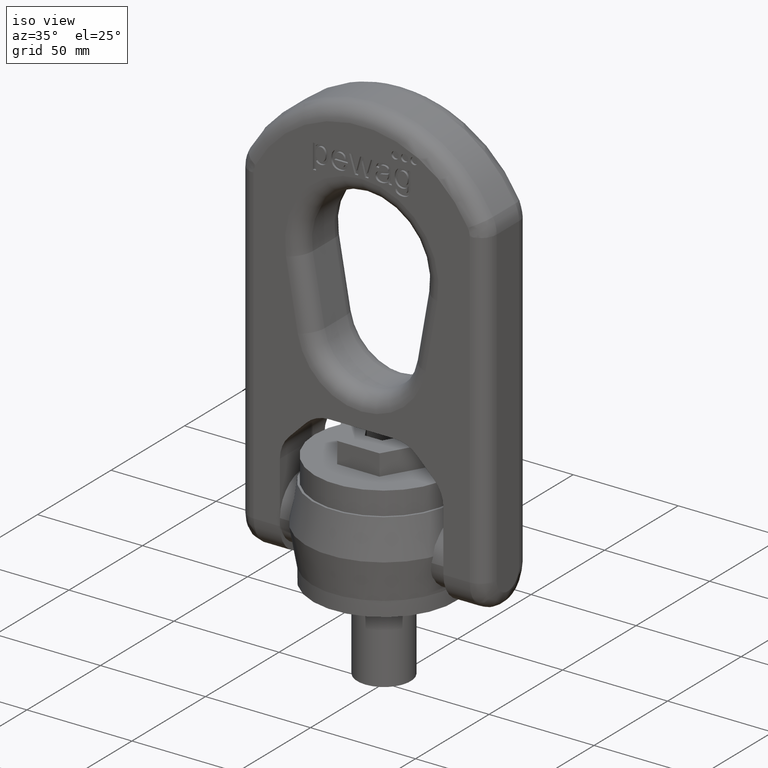
[diagram: clean part render]
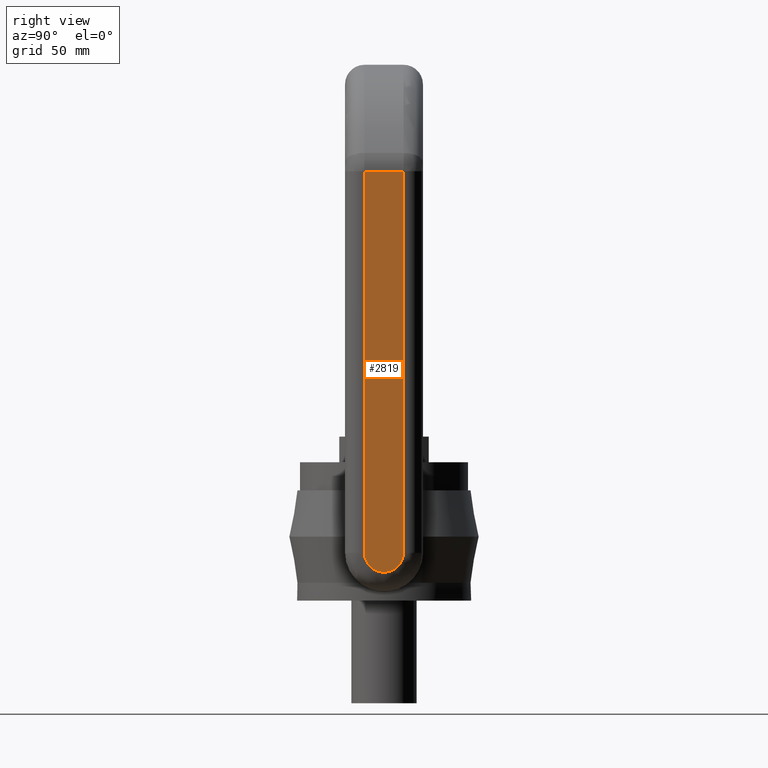
[diagram: tour spotlight — one face highlighted and labeled with its STEP entity id]
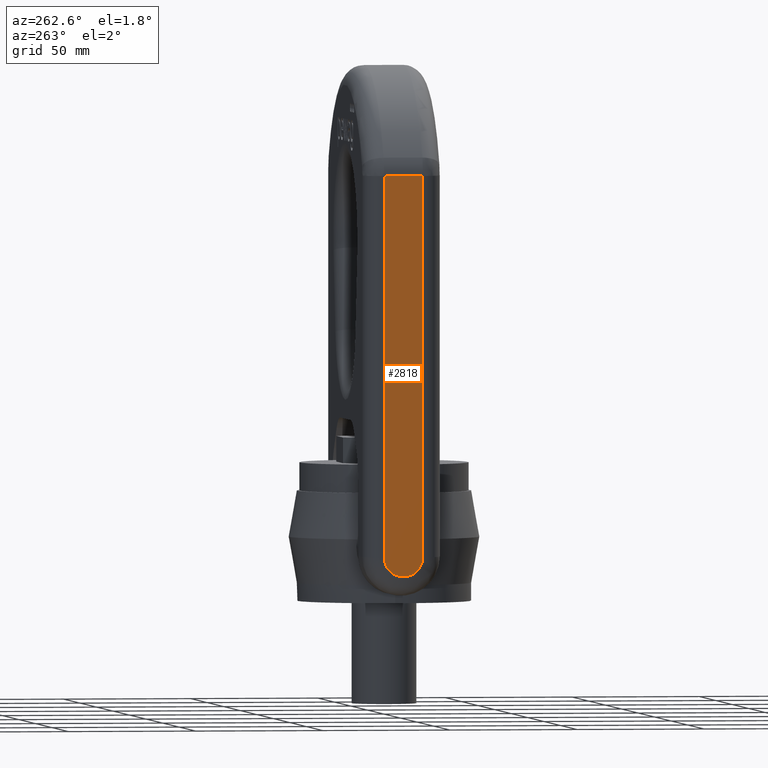
[diagram: tour spotlight — one face highlighted and labeled with its STEP entity id]
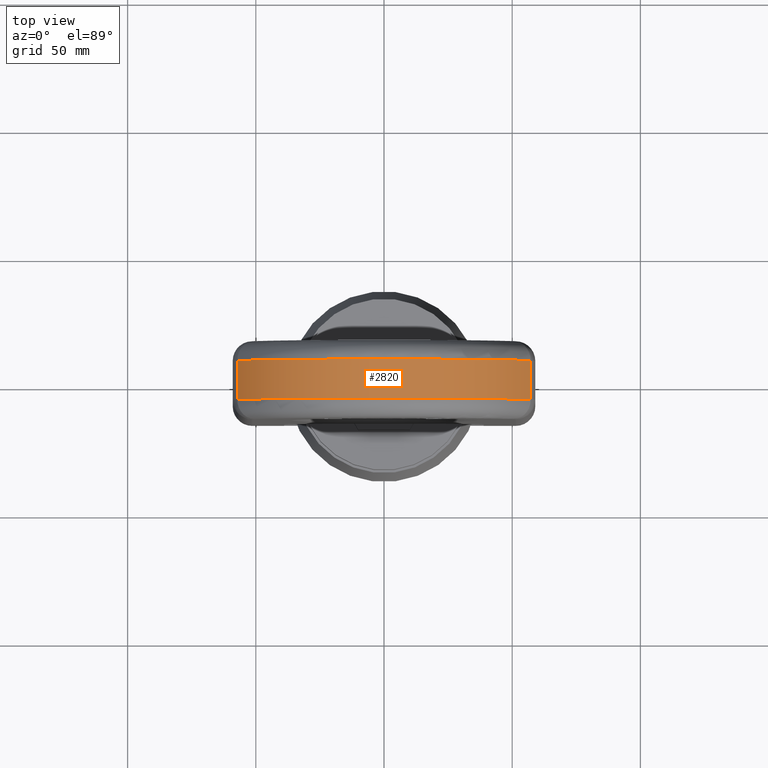
[diagram: tour spotlight — one face highlighted and labeled with its STEP entity id]
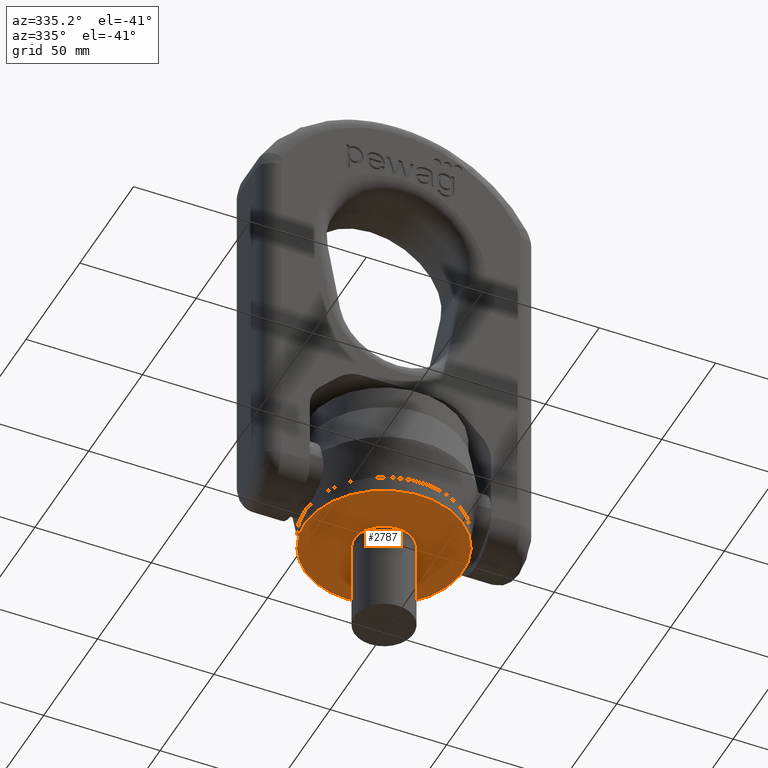
[diagram: tour spotlight — one face highlighted and labeled with its STEP entity id]
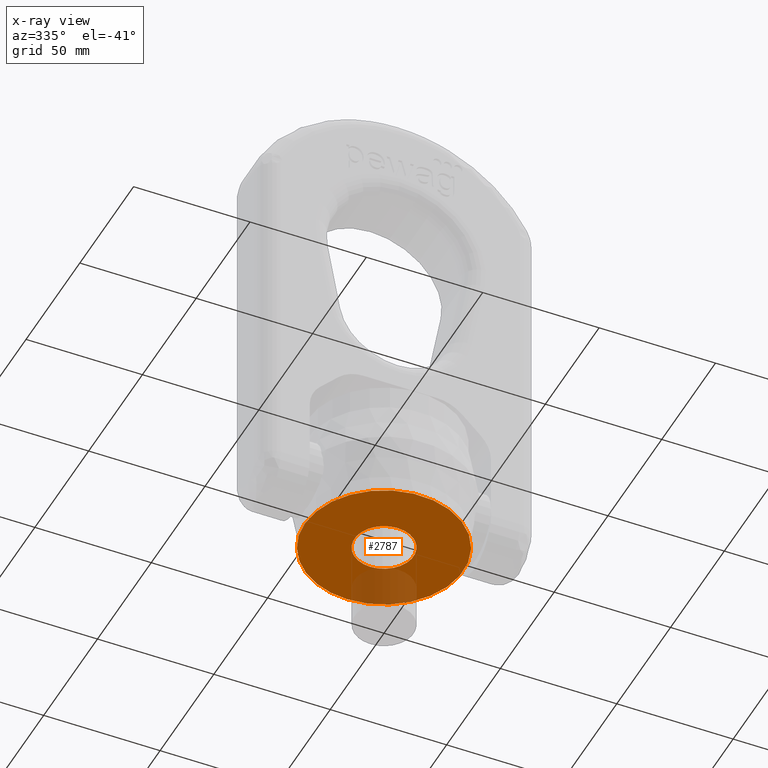
[diagram: x-ray of the same camera — body ghosted, this tour face saturated]
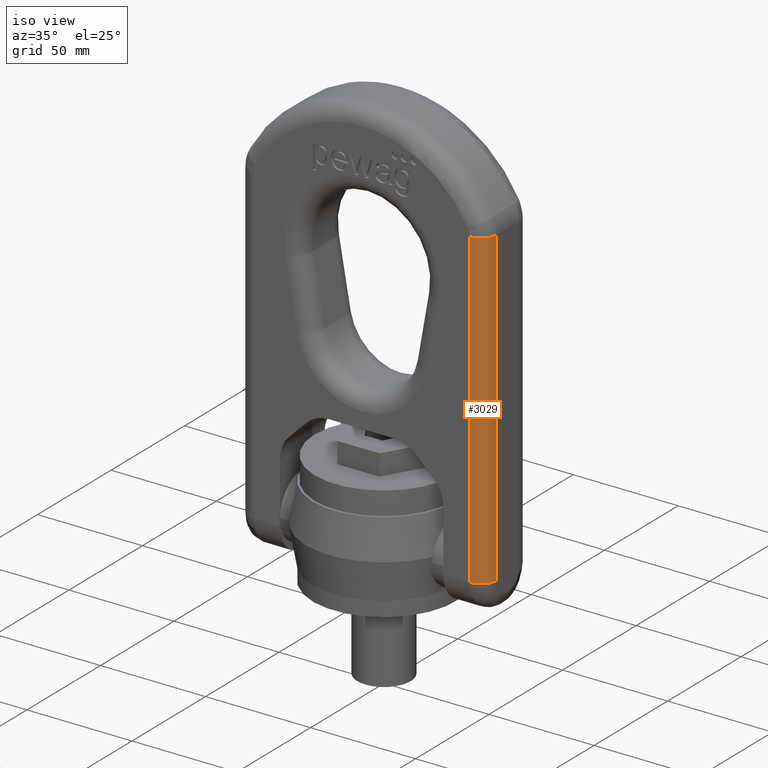
[diagram: tour spotlight — one face highlighted and labeled with its STEP entity id]
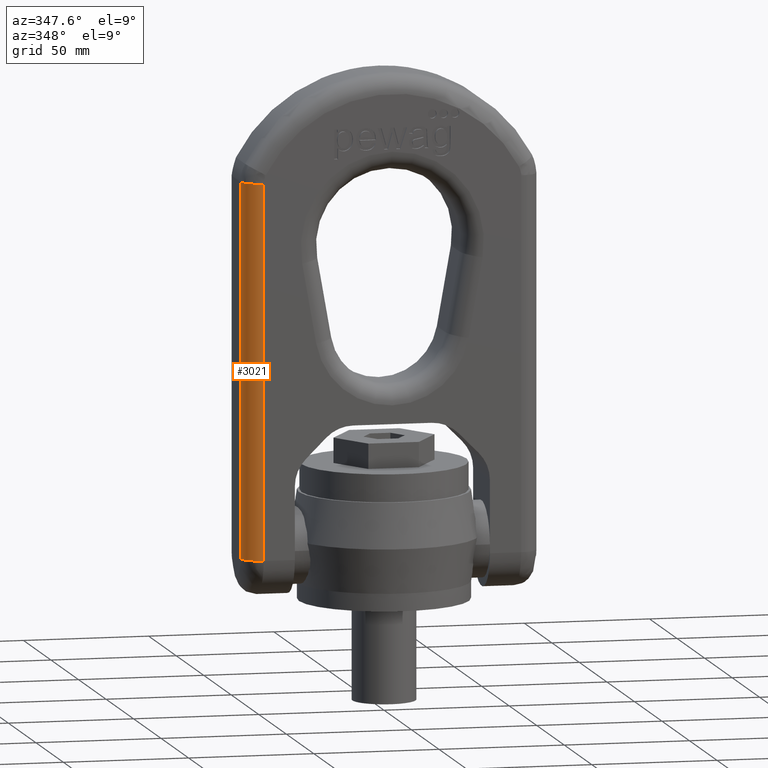
[diagram: tour spotlight — one face highlighted and labeled with its STEP entity id]
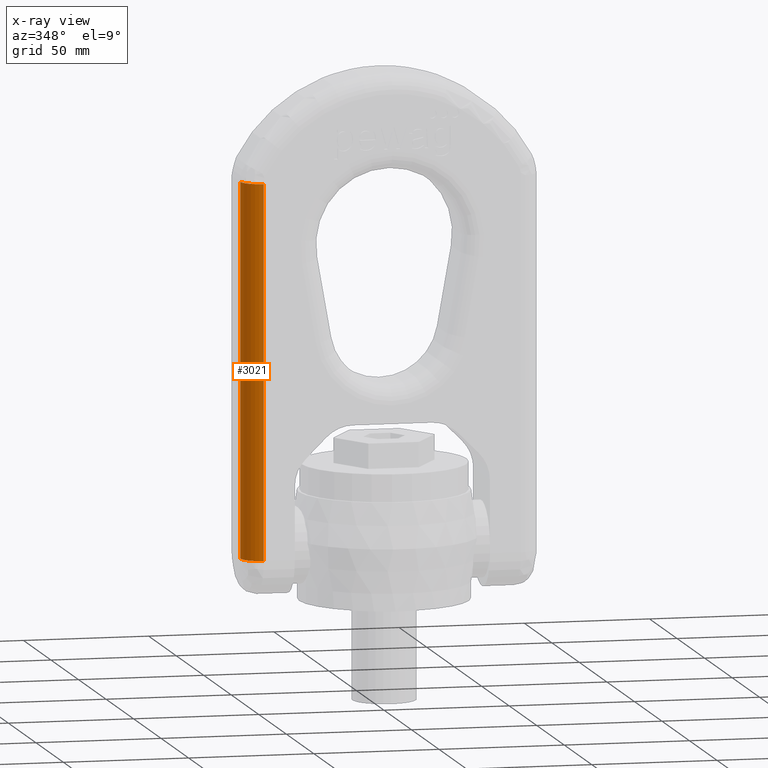
[diagram: x-ray of the same camera — body ghosted, this tour face saturated]
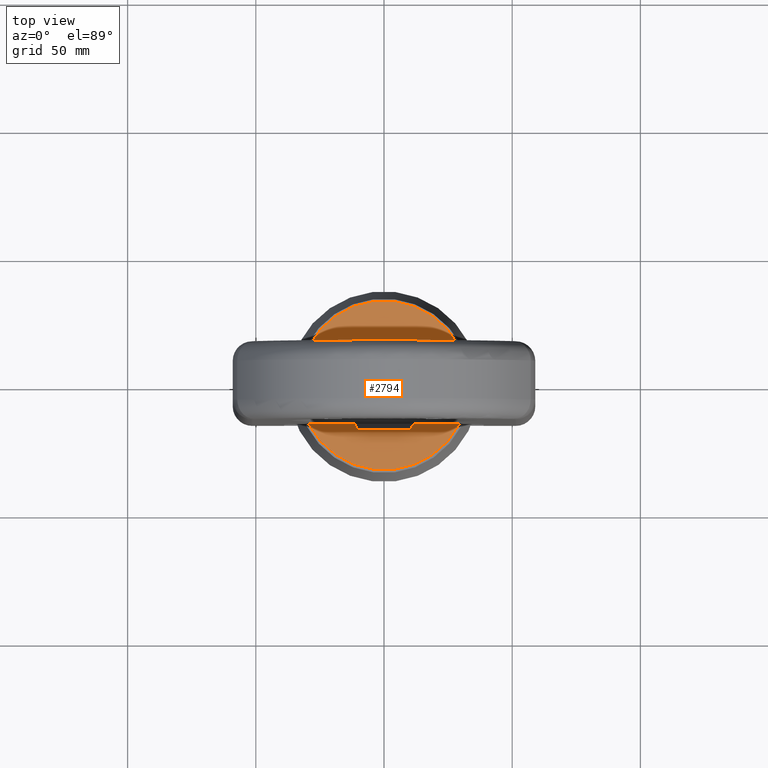
[diagram: tour spotlight — one face highlighted and labeled with its STEP entity id]
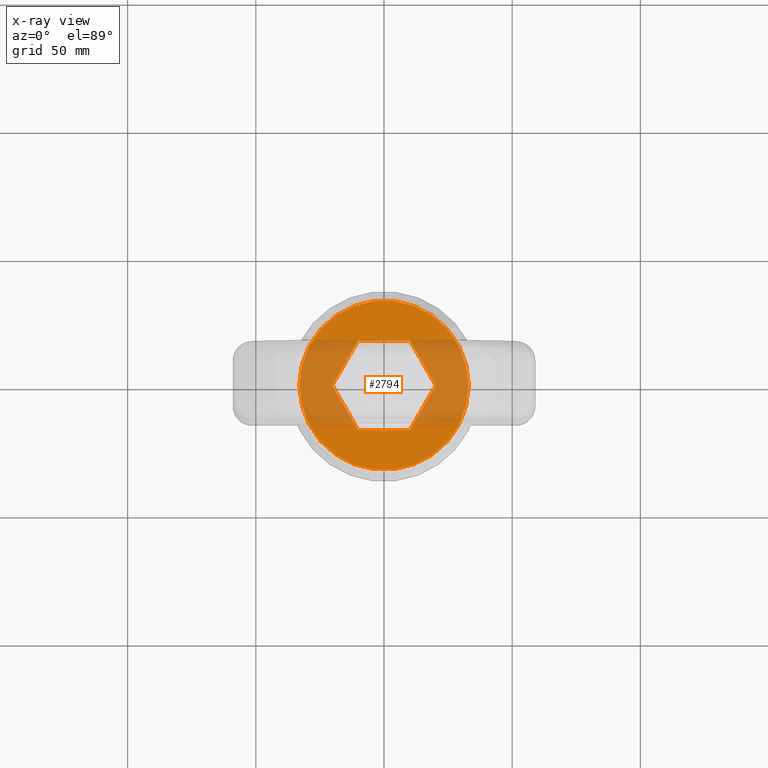
[diagram: x-ray of the same camera — body ghosted, this tour face saturated]
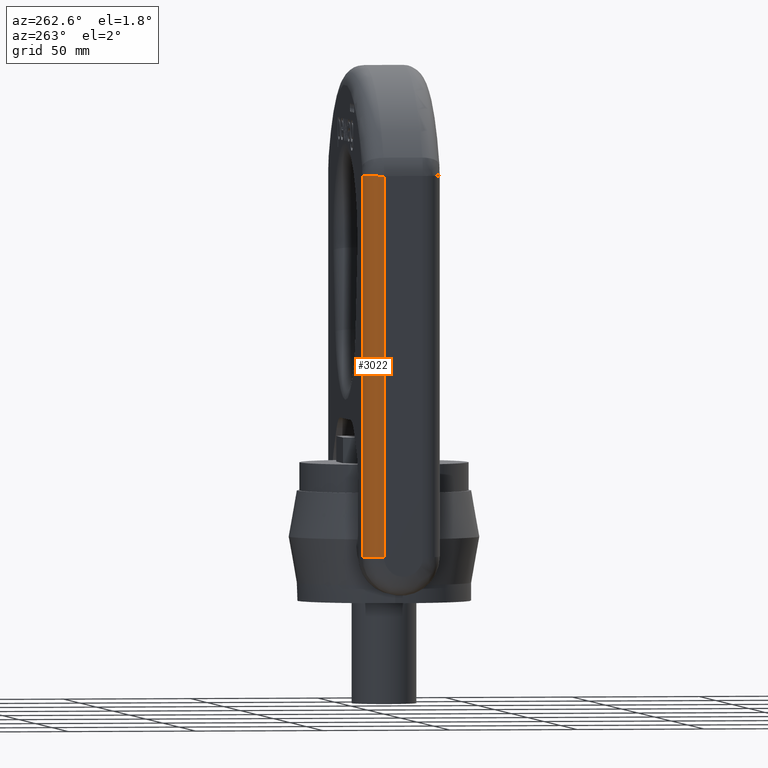
[diagram: tour spotlight — one face highlighted and labeled with its STEP entity id]
A machine part: a face-by-face anatomy tour. The part has 254 B-rep faces; the first image is the clean iso view, then the 8 largest visible faces are spotlighted one at a time (largest first), each with its STEP entity span.

Face 1 — right view, entity #2819. In plain terms, the highlighted planar face has unit normal (-1, 0, -0).
Definition (entity closure, byte-faithful):
#1867=LINE('',#7754,#2175);
#1868=LINE('',#7756,#2176);
#1869=LINE('',#7758,#2177);
#2175=VECTOR('',#6354,1.);
#2176=VECTOR('',#6355,1.);
#2177=VECTOR('',#6356,1.);
#2459=FACE_OUTER_BOUND('',#3197,.T.);
#2690=PLANE('',#5903);
#2819=ADVANCED_FACE('',(#2459),#2690,.F.);
#3197=EDGE_LOOP('',(#3735,#3736,#3737,#3738));
#3735=ORIENTED_EDGE('',*,*,#5364,.T.);
#3736=ORIENTED_EDGE('',*,*,#5365,.T.);
#3737=ORIENTED_EDGE('',*,*,#5366,.T.);
#3738=ORIENTED_EDGE('',*,*,#5367,.T.);
#4923=VERTEX_POINT('',#7752);
#4924=VERTEX_POINT('',#7753);
#4925=VERTEX_POINT('',#7755);
#4926=VERTEX_POINT('',#7757);
#5364=EDGE_CURVE('',#4923,#4924,#5790,.T.);
#5365=EDGE_CURVE('',#4924,#4925,#1867,.T.);
#5366=EDGE_CURVE('',#4925,#4926,#1868,.T.);
#5367=EDGE_CURVE('',#4926,#4923,#1869,.T.);
#5790=CIRCLE('',#5902,7.59999999999993);
#5902=AXIS2_PLACEMENT_3D('',#7751,#6352,#6353);
#5903=AXIS2_PLACEMENT_3D('',#7759,#6357,#6358);
#6352=DIRECTION('',(1.,0.,8.28524645242654E-17));
#6353=DIRECTION('',(0.,0.,1.));
#6354=DIRECTION('',(-8.28524645242654E-17,1.94115928071668E-31,1.));
#6355=DIRECTION('',(0.,-1.,0.));
#6356=DIRECTION('',(8.28524645242654E-17,0.,-1.));
#6357=DIRECTION('',(-1.,0.,-8.28524645242654E-17));
#6358=DIRECTION('',(-8.32667268468867E-17,0.,1.));
#7751=CARTESIAN_POINT('',(59.,-6.04507028238697E-14,18.6999999999999));
#7752=CARTESIAN_POINT('',(59.,-7.6,18.6999999999999));
#7753=CARTESIAN_POINT('',(59.,7.59999999999987,18.6999999999999));
#7754=CARTESIAN_POINT('',(59.,7.59999999999988,167.477855090295));
#7755=CARTESIAN_POINT('',(59.,7.59999999999987,167.477855090295));
#7756=CARTESIAN_POINT('',(59.,-15.2,167.477855090295));
#7757=CARTESIAN_POINT('',(59.,-7.6,167.477855090295));
#7758=CARTESIAN_POINT('',(59.,-7.6,18.6999999999999));
#7759=CARTESIAN_POINT('',(59.,-15.2,3.5));

Face 2 — auxiliary view, entity #2818. In plain terms, the highlighted planar face has unit normal (1, 0, -0).
Definition (entity closure, byte-faithful):
#1864=LINE('',#7742,#2172);
#1865=LINE('',#7745,#2173);
#1866=LINE('',#7749,#2174);
#2172=VECTOR('',#6345,1.);
#2173=VECTOR('',#6346,1.);
#2174=VECTOR('',#6349,1.);
#2458=FACE_OUTER_BOUND('',#3196,.T.);
#2689=PLANE('',#5901);
#2818=ADVANCED_FACE('',(#2458),#2689,.F.);
#3196=EDGE_LOOP('',(#3731,#3732,#3733,#3734));
#3731=ORIENTED_EDGE('',*,*,#5360,.T.);
#3732=ORIENTED_EDGE('',*,*,#5361,.T.);
#3733=ORIENTED_EDGE('',*,*,#5362,.T.);
#3734=ORIENTED_EDGE('',*,*,#5363,.T.);
#4919=VERTEX_POINT('',#7743);
#4920=VERTEX_POINT('',#7744);
#4921=VERTEX_POINT('',#7746);
#4922=VERTEX_POINT('',#7748);
#5360=EDGE_CURVE('',#4919,#4920,#1864,.T.);
#5361=EDGE_CURVE('',#4920,#4921,#1865,.T.);
#5362=EDGE_CURVE('',#4921,#4922,#5789,.T.);
#5363=EDGE_CURVE('',#4922,#4919,#1866,.T.);
#5789=CIRCLE('',#5900,7.59999999999993);
#5900=AXIS2_PLACEMENT_3D('',#7747,#6347,#6348);
#5901=AXIS2_PLACEMENT_3D('',#7750,#6350,#6351);
#6345=DIRECTION('',(0.,1.,0.));
#6346=DIRECTION('',(-8.28524645242654E-17,1.94115928071668E-31,-1.));
#6347=DIRECTION('',(-1.,0.,8.28524645242654E-17));
#6348=DIRECTION('',(0.,0.,-1.));
#6349=DIRECTION('',(8.28524645242654E-17,0.,1.));
#6350=DIRECTION('',(1.,0.,-8.28524645242654E-17));
#6351=DIRECTION('',(-8.32667268468867E-17,0.,-1.));
#7742=CARTESIAN_POINT('',(-59.,-15.2,167.477855090295));
#7743=CARTESIAN_POINT('',(-59.,-7.6,167.477855090295));
#7744=CARTESIAN_POINT('',(-59.,7.60000000000012,167.477855090295));
#7745=CARTESIAN_POINT('',(-59.,7.60000000000012,18.7000000000001));
#7746=CARTESIAN_POINT('',(-59.,7.59999999999999,18.7000000000001));
#7747=CARTESIAN_POINT('',(-59.,6.04507028238698E-14,18.7000000000001));
#7748=CARTESIAN_POINT('',(-59.,-7.6,18.7000000000001));
#7749=CARTESIAN_POINT('',(-59.,-7.6,167.477855090295));
#7750=CARTESIAN_POINT('',(-59.,-15.2,171.));

Face 3 — top view, entity #2820. In plain terms, the highlighted cylindrical surface (partial cylindrical patch) has radius 64.8026 mm, axis along (0, 1, 0).
Definition (entity closure, byte-faithful):
#1870=LINE('',#7760,#2178);
#1871=LINE('',#7765,#2179);
#2178=VECTOR('',#6359,1.);
#2179=VECTOR('',#6362,1.);
#2460=FACE_OUTER_BOUND('',#3198,.T.);
#2820=ADVANCED_FACE('',(#2460),#3046,.T.);
#3046=CYLINDRICAL_SURFACE('',#5906,64.8026315789474);
#3198=EDGE_LOOP('',(#3739,#3740,#3741,#3742));
#3739=ORIENTED_EDGE('',*,*,#5368,.T.);
#3740=ORIENTED_EDGE('',*,*,#5369,.T.);
#3741=ORIENTED_EDGE('',*,*,#5370,.T.);
#3742=ORIENTED_EDGE('',*,*,#5371,.T.);
#4927=VERTEX_POINT('',#7761);
#4928=VERTEX_POINT('',#7762);
#4929=VERTEX_POINT('',#7764);
#4930=VERTEX_POINT('',#7766);
#5368=EDGE_CURVE('',#4927,#4928,#1870,.T.);
#5369=EDGE_CURVE('',#4928,#4929,#5791,.T.);
#5370=EDGE_CURVE('',#4929,#4930,#1871,.T.);
#5371=EDGE_CURVE('',#4930,#4927,#5792,.T.);
#5791=CIRCLE('',#5904,64.8026315789474);
#5792=CIRCLE('',#5905,64.8026315789474);
#5904=AXIS2_PLACEMENT_3D('',#7763,#6360,#6361);
#5905=AXIS2_PLACEMENT_3D('',#7767,#6363,#6364);
#5906=AXIS2_PLACEMENT_3D('',#7768,#6365,#6366);
#6359=DIRECTION('',(0.,1.,0.));
#6360=DIRECTION('',(-2.34291072916505E-15,-1.,0.));
#6361=DIRECTION('',(-1.,2.34231697771488E-15,0.));
#6362=DIRECTION('',(0.,-1.,0.));
#6363=DIRECTION('',(0.,1.,0.));
#6364=DIRECTION('',(0.,0.,-1.));
#6365=DIRECTION('',(0.,1.,0.));
#6366=DIRECTION('',(0.,0.,1.));
#7760=CARTESIAN_POINT('',(57.2218685341398,-15.2,174.611819279459));
#7761=CARTESIAN_POINT('',(57.2218685341398,-7.6,174.611819279459));
#7762=CARTESIAN_POINT('',(57.2218685341398,7.59999999999985,174.611819279459));
#7763=CARTESIAN_POINT('',(0.,7.59999999999998,144.197368421053));
#7764=CARTESIAN_POINT('',(-57.2218685341398,7.60000000000012,174.611819279459));
#7765=CARTESIAN_POINT('',(-57.2218685341398,-15.2,174.611819279459));
#7766=CARTESIAN_POINT('',(-57.2218685341398,-7.6,174.611819279459));
#7767=CARTESIAN_POINT('',(0.,-7.6,144.197368421053));
#7768=CARTESIAN_POINT('',(0.,-15.2,144.197368421053));

Face 4 — auxiliary view, entity #2787. An x-ray twin of the same camera follows (body ghosted, this face saturated) — the face is partly hidden behind the body. In plain terms, the highlighted planar face has unit normal (0, 0, -1).
Definition (entity closure, byte-faithful):
#2665=PLANE('',#5832);
#2787=ADVANCED_FACE('',(#3071,#3072),#2665,.T.);
#3071=FACE_BOUND('',#3139,.T.);
#3072=FACE_BOUND('',#3140,.T.);
#3139=EDGE_LOOP('',(#3435));
#3140=EDGE_LOOP('',(#3436));
#3435=ORIENTED_EDGE('',*,*,#5119,.F.);
#3436=ORIENTED_EDGE('',*,*,#5118,.T.);
#4698=VERTEX_POINT('',#6940);
#4699=VERTEX_POINT('',#6943);
#5118=EDGE_CURVE('',#4698,#4698,#5750,.T.);
#5119=EDGE_CURVE('',#4699,#4699,#5751,.T.);
#5750=CIRCLE('',#5829,34.);
#5751=CIRCLE('',#5831,12.7);
#5829=AXIS2_PLACEMENT_3D('',#6939,#6068,#6069);
#5831=AXIS2_PLACEMENT_3D('',#6942,#6072,#6073);
#5832=AXIS2_PLACEMENT_3D('',#6944,#6074,#6075);
#6068=DIRECTION('',(0.,0.,-1.));
#6069=DIRECTION('',(-6.12323399573677E-17,1.,0.));
#6072=DIRECTION('',(0.,0.,-1.));
#6073=DIRECTION('',(-6.12323399573677E-17,1.,0.));
#6074=DIRECTION('',(0.,0.,-1.));
#6075=DIRECTION('',(-1.,0.,0.));
#6939=CARTESIAN_POINT('',(0.,0.,0.));
#6940=CARTESIAN_POINT('',(-2.0818995585505E-15,34.,0.));
#6942=CARTESIAN_POINT('',(0.,0.,0.));
#6943=CARTESIAN_POINT('',(-7.77650717458569E-16,12.7,0.));
#6944=CARTESIAN_POINT('',(0.,0.,0.));

Face 5 — iso view, entity #3029. In plain terms, the highlighted cylindrical surface (edge-blend (fillet) strip) has radius 7.6 mm, axis along (0, 0, -1).
Definition (entity closure, byte-faithful):
#1776=LINE('',#7077,#2084);
#1869=LINE('',#7758,#2177);
#2084=VECTOR('',#6199,1.);
#2177=VECTOR('',#6356,1.);
#2654=FACE_OUTER_BOUND('',#3422,.T.);
#3029=ADVANCED_FACE('',(#2654),#3063,.T.);
#3063=CYLINDRICAL_SURFACE('',#6045,7.6);
#3422=EDGE_LOOP('',(#4653,#4654,#4655,#4656));
#4653=ORIENTED_EDGE('',*,*,#5737,.F.);
#4654=ORIENTED_EDGE('',*,*,#5180,.F.);
#4655=ORIENTED_EDGE('',*,*,#5739,.F.);
#4656=ORIENTED_EDGE('',*,*,#5367,.F.);
#4742=VERTEX_POINT('',#7066);
#4747=VERTEX_POINT('',#7078);
#4923=VERTEX_POINT('',#7752);
#4926=VERTEX_POINT('',#7757);
#5180=EDGE_CURVE('',#4742,#4747,#1776,.T.);
#5367=EDGE_CURVE('',#4926,#4923,#1869,.T.);
#5737=EDGE_CURVE('',#4747,#4926,#5815,.T.);
#5739=EDGE_CURVE('',#4923,#4742,#5817,.T.);
#5815=CIRCLE('',#6042,7.6);
#5817=CIRCLE('',#6044,7.6);
#6042=AXIS2_PLACEMENT_3D('',#9775,#6892,#6893);
#6044=AXIS2_PLACEMENT_3D('',#9809,#6896,#6897);
#6045=AXIS2_PLACEMENT_3D('',#9810,#6898,#6899);
#6199=DIRECTION('',(-8.28524645242654E-17,0.,1.));
#6356=DIRECTION('',(8.28524645242654E-17,0.,-1.));
#6892=DIRECTION('',(0.,0.,1.));
#6893=DIRECTION('',(-1.,0.,0.));
#6896=DIRECTION('',(0.,0.,-1.));
#6897=DIRECTION('',(-1.,0.,0.));
#6898=DIRECTION('',(8.28524645242654E-17,0.,-1.));
#6899=DIRECTION('',(-1.,0.,0.));
#7066=CARTESIAN_POINT('',(51.4,-15.2,18.6999999999999));
#7077=CARTESIAN_POINT('',(51.4,-15.2,167.477855090295));
#7078=CARTESIAN_POINT('',(51.4,-15.2,167.477855090295));
#7752=CARTESIAN_POINT('',(59.,-7.6,18.6999999999999));
#7757=CARTESIAN_POINT('',(59.,-7.6,167.477855090295));
#7758=CARTESIAN_POINT('',(59.,-7.6,18.6999999999999));
#9775=CARTESIAN_POINT('',(51.4,-7.6,167.477855090295));
#9809=CARTESIAN_POINT('',(51.4,-7.6,18.6999999999999));
#9810=CARTESIAN_POINT('',(51.4,-7.6,144.197368421053));

Face 6 — auxiliary view, entity #3021. An x-ray twin of the same camera follows (body ghosted, this face saturated) — the face is partly hidden behind the body. In plain terms, the highlighted cylindrical surface (edge-blend (fillet) strip) has radius 7.6 mm, axis along (0, 0, 1).
Definition (entity closure, byte-faithful):
#1777=LINE('',#7085,#2085);
#1866=LINE('',#7749,#2174);
#2085=VECTOR('',#6206,1.);
#2174=VECTOR('',#6349,1.);
#2646=FACE_OUTER_BOUND('',#3414,.T.);
#3021=ADVANCED_FACE('',(#2646),#3061,.T.);
#3061=CYLINDRICAL_SURFACE('',#6033,7.6);
#3414=EDGE_LOOP('',(#4621,#4622,#4623,#4624));
#4621=ORIENTED_EDGE('',*,*,#5730,.T.);
#4622=ORIENTED_EDGE('',*,*,#5184,.F.);
#4623=ORIENTED_EDGE('',*,*,#5731,.F.);
#4624=ORIENTED_EDGE('',*,*,#5363,.F.);
#4737=VERTEX_POINT('',#7055);
#4750=VERTEX_POINT('',#7084);
#4919=VERTEX_POINT('',#7743);
#4922=VERTEX_POINT('',#7748);
#5184=EDGE_CURVE('',#4750,#4737,#1777,.T.);
#5363=EDGE_CURVE('',#4922,#4919,#1866,.T.);
#5730=EDGE_CURVE('',#4922,#4737,#5808,.T.);
#5731=EDGE_CURVE('',#4919,#4750,#5809,.T.);
#5808=CIRCLE('',#6031,7.6);
#5809=CIRCLE('',#6032,7.6);
#6031=AXIS2_PLACEMENT_3D('',#9716,#6870,#6871);
#6032=AXIS2_PLACEMENT_3D('',#9733,#6872,#6873);
#6033=AXIS2_PLACEMENT_3D('',#9734,#6874,#6875);
#6206=DIRECTION('',(-8.28524645242654E-17,0.,-1.));
#6349=DIRECTION('',(8.28524645242654E-17,0.,1.));
#6870=DIRECTION('',(0.,0.,1.));
#6871=DIRECTION('',(1.,0.,0.));
#6872=DIRECTION('',(0.,0.,1.));
#6873=DIRECTION('',(1.,0.,0.));
#6874=DIRECTION('',(8.28524645242654E-17,0.,1.));
#6875=DIRECTION('',(1.,0.,0.));
#7055=CARTESIAN_POINT('',(-51.4,-15.2,18.7000000000001));
#7084=CARTESIAN_POINT('',(-51.4,-15.2,167.477855090295));
#7085=CARTESIAN_POINT('',(-51.4,-15.2,18.7000000000001));
#7743=CARTESIAN_POINT('',(-59.,-7.6,167.477855090295));
#7748=CARTESIAN_POINT('',(-59.,-7.6,18.7000000000001));
#7749=CARTESIAN_POINT('',(-59.,-7.6,167.477855090295));
#9716=CARTESIAN_POINT('',(-51.4,-7.59999999999987,18.7000000000001));
#9733=CARTESIAN_POINT('',(-51.4,-7.6,167.477855090295));
#9734=CARTESIAN_POINT('',(-51.4,-7.6,144.197368421053));

Face 7 — top view, entity #2794. An x-ray twin of the same camera follows (body ghosted, this face saturated) — the face is partly hidden behind the body. In plain terms, the highlighted planar face has unit normal (0, 0, 1).
Definition (entity closure, byte-faithful):
#1729=LINE('',#6961,#2037);
#1730=LINE('',#6964,#2038);
#1731=LINE('',#6966,#2039);
#1732=LINE('',#6968,#2040);
#1733=LINE('',#6970,#2041);
#1734=LINE('',#6972,#2042);
#2037=VECTOR('',#6098,1.);
#2038=VECTOR('',#6099,1.);
#2039=VECTOR('',#6100,1.);
#2040=VECTOR('',#6101,1.);
#2041=VECTOR('',#6102,1.);
#2042=VECTOR('',#6103,1.);
#2668=PLANE('',#5844);
#2794=ADVANCED_FACE('',(#3083,#3084),#2668,.T.);
#3083=FACE_BOUND('',#3152,.T.);
#3084=FACE_BOUND('',#3153,.T.);
#3152=EDGE_LOOP('',(#3448,#3449,#3450,#3451,#3452,#3453));
#3153=EDGE_LOOP('',(#3454));
#3448=ORIENTED_EDGE('',*,*,#5125,.F.);
#3449=ORIENTED_EDGE('',*,*,#5126,.F.);
#3450=ORIENTED_EDGE('',*,*,#5127,.F.);
#3451=ORIENTED_EDGE('',*,*,#5128,.F.);
#3452=ORIENTED_EDGE('',*,*,#5129,.F.);
#3453=ORIENTED_EDGE('',*,*,#5130,.F.);
#3454=ORIENTED_EDGE('',*,*,#5124,.F.);
#4704=VERTEX_POINT('',#6959);
#4705=VERTEX_POINT('',#6962);
#4706=VERTEX_POINT('',#6963);
#4707=VERTEX_POINT('',#6965);
#4708=VERTEX_POINT('',#6967);
#4709=VERTEX_POINT('',#6969);
#4710=VERTEX_POINT('',#6971);
#5124=EDGE_CURVE('',#4704,#4704,#5756,.T.);
#5125=EDGE_CURVE('',#4705,#4706,#1729,.T.);
#5126=EDGE_CURVE('',#4707,#4705,#1730,.T.);
#5127=EDGE_CURVE('',#4708,#4707,#1731,.T.);
#5128=EDGE_CURVE('',#4709,#4708,#1732,.T.);
#5129=EDGE_CURVE('',#4710,#4709,#1733,.T.);
#5130=EDGE_CURVE('',#4706,#4710,#1734,.T.);
#5756=CIRCLE('',#5842,33.);
#5842=AXIS2_PLACEMENT_3D('',#6958,#6094,#6095);
#5844=AXIS2_PLACEMENT_3D('',#6973,#6104,#6105);
#6094=DIRECTION('',(0.,0.,-1.));
#6095=DIRECTION('',(-1.,0.,0.));
#6098=DIRECTION('',(0.5,-0.866025403784439,0.));
#6099=DIRECTION('',(-0.5,-0.866025403784439,0.));
#6100=DIRECTION('',(-1.,0.,0.));
#6101=DIRECTION('',(-0.5,0.866025403784439,0.));
#6102=DIRECTION('',(0.5,0.866025403784439,0.));
#6103=DIRECTION('',(1.,0.,0.));
#6104=DIRECTION('',(0.,0.,1.));
#6105=DIRECTION('',(1.,0.,0.));
#6958=CARTESIAN_POINT('',(0.,0.,54.));
#6959=CARTESIAN_POINT('',(-33.,0.,54.));
#6961=CARTESIAN_POINT('',(-20.1495243947179,0.,54.));
#6962=CARTESIAN_POINT('',(-20.1495243947179,0.,54.));
#6963=CARTESIAN_POINT('',(-10.074762197359,-17.45,54.));
#6964=CARTESIAN_POINT('',(-10.074762197359,17.45,54.));
#6965=CARTESIAN_POINT('',(-10.074762197359,17.45,54.));
#6966=CARTESIAN_POINT('',(10.074762197359,17.45,54.));
#6967=CARTESIAN_POINT('',(10.074762197359,17.45,54.));
#6968=CARTESIAN_POINT('',(20.1495243947179,0.,54.));
#6969=CARTESIAN_POINT('',(20.1495243947179,3.46944695195361E-15,54.));
#6970=CARTESIAN_POINT('',(10.074762197359,-17.45,54.));
#6971=CARTESIAN_POINT('',(10.074762197359,-17.45,54.));
#6972=CARTESIAN_POINT('',(-10.074762197359,-17.45,54.));
#6973=CARTESIAN_POINT('',(0.,33.,54.));

Face 8 — auxiliary view, entity #3022. In plain terms, the highlighted cylindrical surface (edge-blend (fillet) strip) has radius 7.6 mm, axis along (-0, 0, -1).
Definition (entity closure, byte-faithful):
#1823=LINE('',#7423,#2131);
#1865=LINE('',#7745,#2173);
#2131=VECTOR('',#6282,1.);
#2173=VECTOR('',#6346,1.);
#2647=FACE_OUTER_BOUND('',#3415,.T.);
#3022=ADVANCED_FACE('',(#2647),#3062,.T.);
#3062=CYLINDRICAL_SURFACE('',#6035,7.6);
#3415=EDGE_LOOP('',(#4625,#4626,#4627,#4628));
#4625=ORIENTED_EDGE('',*,*,#5729,.T.);
#4626=ORIENTED_EDGE('',*,*,#5361,.F.);
#4627=ORIENTED_EDGE('',*,*,#5732,.F.);
#4628=ORIENTED_EDGE('',*,*,#5278,.F.);
#4739=VERTEX_POINT('',#7058);
#4840=VERTEX_POINT('',#7424);
#4920=VERTEX_POINT('',#7744);
#4921=VERTEX_POINT('',#7746);
#5278=EDGE_CURVE('',#4739,#4840,#1823,.T.);
#5361=EDGE_CURVE('',#4920,#4921,#1865,.T.);
#5729=EDGE_CURVE('',#4739,#4921,#5807,.T.);
#5732=EDGE_CURVE('',#4840,#4920,#5810,.T.);
#5807=CIRCLE('',#6030,7.6);
#5810=CIRCLE('',#6034,7.6);
#6030=AXIS2_PLACEMENT_3D('',#9715,#6868,#6869);
#6034=AXIS2_PLACEMENT_3D('',#9735,#6876,#6877);
#6035=AXIS2_PLACEMENT_3D('',#9736,#6878,#6879);
#6282=DIRECTION('',(8.28524645242654E-17,-1.94115928071668E-31,1.));
#6346=DIRECTION('',(-8.28524645242654E-17,1.94115928071668E-31,-1.));
#6868=DIRECTION('',(0.,0.,1.));
#6869=DIRECTION('',(1.,0.,0.));
#6876=DIRECTION('',(0.,0.,1.));
#6877=DIRECTION('',(1.,0.,0.));
#6878=DIRECTION('',(-8.28524645242654E-17,1.94115928071668E-31,-1.));
#6879=DIRECTION('',(-1.,0.,0.));
#7058=CARTESIAN_POINT('',(-51.4,15.2000000000001,18.7000000000001));
#7423=CARTESIAN_POINT('',(-51.4,15.2000000000001,167.477855090295));
#7424=CARTESIAN_POINT('',(-51.4,15.2000000000001,167.477855090295));
#7744=CARTESIAN_POINT('',(-59.,7.60000000000012,167.477855090295));
#7745=CARTESIAN_POINT('',(-59.,7.60000000000012,18.7000000000001));
#7746=CARTESIAN_POINT('',(-59.,7.59999999999999,18.7000000000001));
#9715=CARTESIAN_POINT('',(-51.4,7.59999999999999,18.7000000000001));
#9735=CARTESIAN_POINT('',(-51.4,7.60000000000012,167.477855090295));
#9736=CARTESIAN_POINT('',(-51.4,7.60000000000012,144.197368421053));